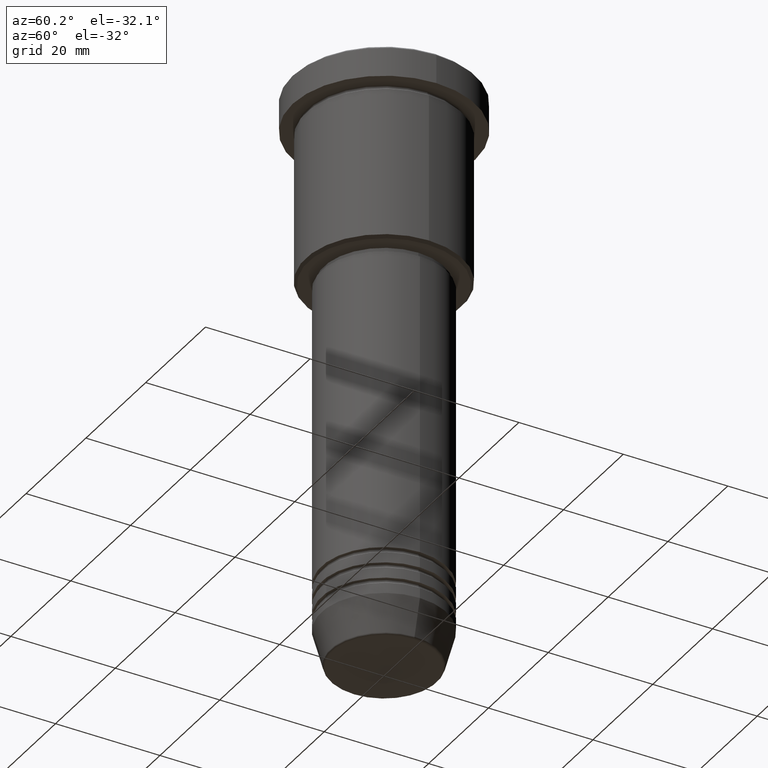
[diagram: clean part render]
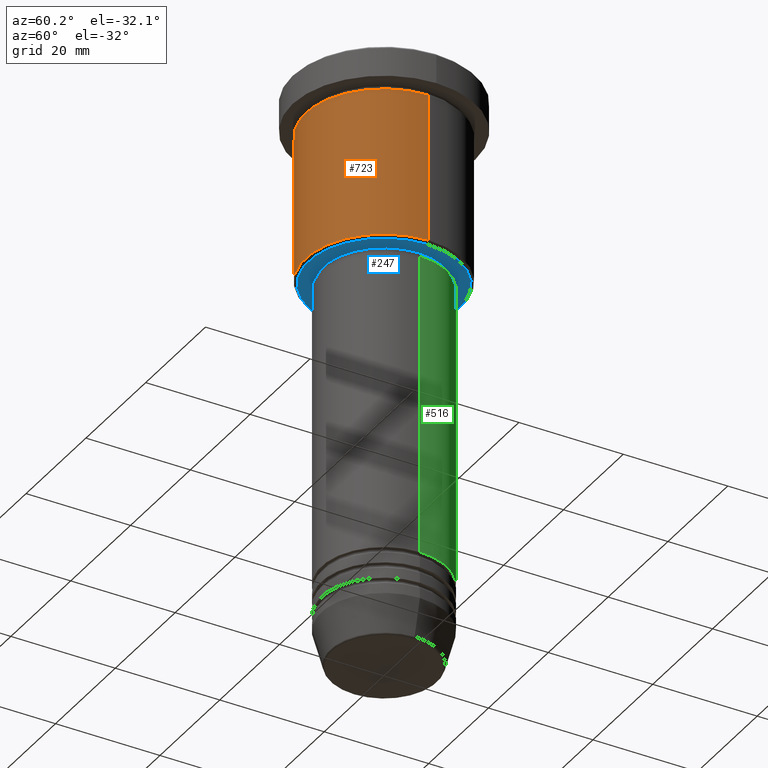
[diagram: same view with three faces highlighted in distinct colors, each labeled with its STEP entity id]
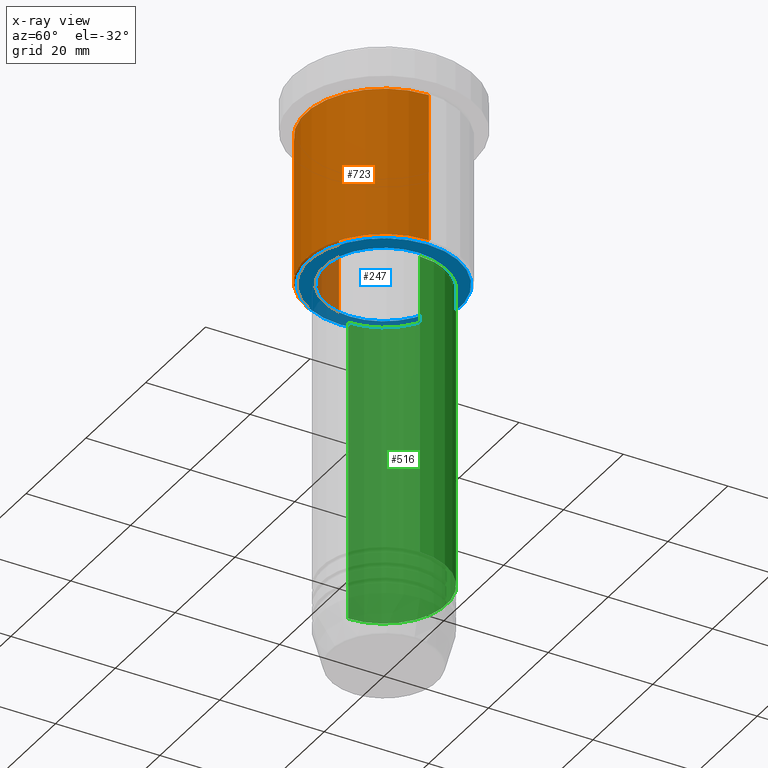
[diagram: x-ray of the same camera — body ghosted, the three highlighted faces saturated]
A machine part, auxiliary view with three faces highlighted in distinct colors.
The next image is the same camera in x-ray (body ghosted, the three faces saturated) — at least one of them is partly hidden behind the body in this view.
Their STEP definitions:

[orange] entity #723 — the highlighted cylindrical surface (partial cylindrical patch) has radius 15 mm, axis along (-0, -0, 1).
#103 = DIRECTION ( 'NONE',  ( -0.000000000000000000, -0.000000000000000000, 1.000000000000000000 ) ) ;
#111 = CARTESIAN_POINT ( 'NONE',  ( 15.00000000000000000, 0.000000000000000000, 0.000000000000000000 ) ) ;
#118 = VECTOR ( 'NONE', #581, 1000.000000000000000 ) ;
#134 = VERTEX_POINT ( 'NONE', #1126 ) ;
#211 = CARTESIAN_POINT ( 'NONE',  ( 0.000000000000000000, 0.000000000000000000, -6.999999999999995559 ) ) ;
#217 = DIRECTION ( 'NONE',  ( 1.000000000000000000, 0.000000000000000000, 0.000000000000000000 ) ) ;
#288 = DIRECTION ( 'NONE',  ( -0.000000000000000000, -0.000000000000000000, 1.000000000000000000 ) ) ;
#317 = ORIENTED_EDGE ( 'NONE', *, *, #347, .T. ) ;
#347 = EDGE_CURVE ( 'NONE', #597, #134, #754, .T. ) ;
#372 = CIRCLE ( 'NONE', #473, 15.00000000000000000 ) ;
#424 = EDGE_CURVE ( 'NONE', #798, #898, #734, .T. ) ;
#463 = CARTESIAN_POINT ( 'NONE',  ( 0.000000000000000000, 0.000000000000000000, -35.50000000000000711 ) ) ;
#473 = AXIS2_PLACEMENT_3D ( 'NONE', #211, #828, #217 ) ;
#476 = CARTESIAN_POINT ( 'NONE',  ( -15.00000000000000000, 1.836970198721029589E-15, -35.50000000000000711 ) ) ;
#518 = ORIENTED_EDGE ( 'NONE', *, *, #815, .T. ) ;
#552 = ORIENTED_EDGE ( 'NONE', *, *, #424, .F. ) ;
#570 = EDGE_LOOP ( 'NONE', ( #552, #518, #317, #725 ) ) ;
#581 = DIRECTION ( 'NONE',  ( -0.000000000000000000, -0.000000000000000000, 1.000000000000000000 ) ) ;
#597 = VERTEX_POINT ( 'NONE', #884 ) ;
#643 = CYLINDRICAL_SURFACE ( 'NONE', #1130, 15.00000000000000000 ) ;
#664 = DIRECTION ( 'NONE',  ( -1.000000000000000000, 0.000000000000000000, 0.000000000000000000 ) ) ;
#723 = ADVANCED_FACE ( 'NONE', ( #920 ), #643, .T. ) ;
#725 = ORIENTED_EDGE ( 'NONE', *, *, #753, .F. ) ;
#734 = LINE ( 'NONE', #1105, #925 ) ;
#753 = EDGE_CURVE ( 'NONE', #898, #134, #372, .T. ) ;
#754 = LINE ( 'NONE', #111, #118 ) ;
#798 = VERTEX_POINT ( 'NONE', #476 ) ;
#815 = EDGE_CURVE ( 'NONE', #798, #597, #866, .T. ) ;
#828 = DIRECTION ( 'NONE',  ( -0.000000000000000000, -0.000000000000000000, 1.000000000000000000 ) ) ;
#866 = CIRCLE ( 'NONE', #1058, 15.00000000000000000 ) ;
#884 = CARTESIAN_POINT ( 'NONE',  ( 15.00000000000000000, 0.000000000000000000, -35.50000000000000711 ) ) ;
#898 = VERTEX_POINT ( 'NONE', #1035 ) ;
#920 = FACE_OUTER_BOUND ( 'NONE', #570, .T. ) ;
#925 = VECTOR ( 'NONE', #1101, 1000.000000000000000 ) ;
#930 = DIRECTION ( 'NONE',  ( 1.000000000000000000, 0.000000000000000000, 0.000000000000000000 ) ) ;
#1004 = CARTESIAN_POINT ( 'NONE',  ( 0.000000000000000000, 0.000000000000000000, 0.000000000000000000 ) ) ;
#1035 = CARTESIAN_POINT ( 'NONE',  ( -15.00000000000000000, 1.836970198721029589E-15, -6.999999999999995559 ) ) ;
#1058 = AXIS2_PLACEMENT_3D ( 'NONE', #463, #288, #664 ) ;
#1101 = DIRECTION ( 'NONE',  ( -0.000000000000000000, -0.000000000000000000, 1.000000000000000000 ) ) ;
#1105 = CARTESIAN_POINT ( 'NONE',  ( -15.00000000000000000, 1.836970198721029589E-15, 0.000000000000000000 ) ) ;
#1126 = CARTESIAN_POINT ( 'NONE',  ( 15.00000000000000000, 0.000000000000000000, -6.999999999999995559 ) ) ;
#1130 = AXIS2_PLACEMENT_3D ( 'NONE', #1004, #103, #930 ) ;

[blue] entity #247 — the highlighted planar face has unit normal (0, 0, -1).
#5 = CARTESIAN_POINT ( 'NONE',  ( -14.49999999999998401, 1.806354028742345013E-15, -36.00000000000000711 ) ) ;
#9 = DIRECTION ( 'NONE',  ( -1.000000000000000000, 0.000000000000000000, 0.000000000000000000 ) ) ;
#50 = DIRECTION ( 'NONE',  ( 0.000000000000000000, 0.000000000000000000, -1.000000000000000000 ) ) ;
#66 = EDGE_LOOP ( 'NONE', ( #778, #797 ) ) ;
#76 = VERTEX_POINT ( 'NONE', #5 ) ;
#77 = AXIS2_PLACEMENT_3D ( 'NONE', #437, #50, #690 ) ;
#79 = CIRCLE ( 'NONE', #387, 11.50000000000000000 ) ;
#84 = DIRECTION ( 'NONE',  ( -1.000000000000000000, 0.000000000000000000, 0.000000000000000000 ) ) ;
#100 = AXIS2_PLACEMENT_3D ( 'NONE', #1091, #1010, #9 ) ;
#143 = CIRCLE ( 'NONE', #732, 14.49999999999998401 ) ;
#176 = EDGE_LOOP ( 'NONE', ( #987, #878 ) ) ;
#190 = DIRECTION ( 'NONE',  ( 1.000000000000000000, 0.000000000000000000, 0.000000000000000000 ) ) ;
#196 = CARTESIAN_POINT ( 'NONE',  ( 0.000000000000000000, 0.000000000000000000, -36.00000000000000711 ) ) ;
#247 = ADVANCED_FACE ( 'NONE', ( #422, #525 ), #609, .T. ) ;
#269 = DIRECTION ( 'NONE',  ( 0.000000000000000000, 0.000000000000000000, -1.000000000000000000 ) ) ;
#272 = DIRECTION ( 'NONE',  ( 1.000000000000000000, 0.000000000000000000, 0.000000000000000000 ) ) ;
#305 = CARTESIAN_POINT ( 'NONE',  ( 11.50000000000000000, 0.000000000000000000, -36.00000000000000711 ) ) ;
#307 = CARTESIAN_POINT ( 'NONE',  ( -11.50000000000000000, 1.408343819019456176E-15, -36.00000000000000711 ) ) ;
#315 = EDGE_CURVE ( 'NONE', #1158, #852, #79, .T. ) ;
#387 = AXIS2_PLACEMENT_3D ( 'NONE', #549, #1177, #190 ) ;
#404 = EDGE_CURVE ( 'NONE', #852, #1158, #1145, .T. ) ;
#416 = VERTEX_POINT ( 'NONE', #1180 ) ;
#422 = FACE_OUTER_BOUND ( 'NONE', #66, .T. ) ;
#437 = CARTESIAN_POINT ( 'NONE',  ( 0.000000000000000000, 15.00000000000000000, -36.00000000000000711 ) ) ;
#525 = FACE_BOUND ( 'NONE', #176, .T. ) ;
#549 = CARTESIAN_POINT ( 'NONE',  ( 0.000000000000000000, 0.000000000000000000, -36.00000000000000711 ) ) ;
#585 = AXIS2_PLACEMENT_3D ( 'NONE', #1092, #1006, #272 ) ;
#609 = PLANE ( 'NONE',  #77 ) ;
#690 = DIRECTION ( 'NONE',  ( -1.000000000000000000, 0.000000000000000000, -0.000000000000000000 ) ) ;
#691 = EDGE_CURVE ( 'NONE', #416, #76, #143, .T. ) ;
#698 = EDGE_CURVE ( 'NONE', #76, #416, #845, .T. ) ;
#732 = AXIS2_PLACEMENT_3D ( 'NONE', #196, #269, #84 ) ;
#778 = ORIENTED_EDGE ( 'NONE', *, *, #691, .T. ) ;
#797 = ORIENTED_EDGE ( 'NONE', *, *, #698, .T. ) ;
#845 = CIRCLE ( 'NONE', #100, 14.49999999999998401 ) ;
#852 = VERTEX_POINT ( 'NONE', #307 ) ;
#878 = ORIENTED_EDGE ( 'NONE', *, *, #404, .T. ) ;
#987 = ORIENTED_EDGE ( 'NONE', *, *, #315, .T. ) ;
#1006 = DIRECTION ( 'NONE',  ( -0.000000000000000000, -0.000000000000000000, 1.000000000000000000 ) ) ;
#1010 = DIRECTION ( 'NONE',  ( 0.000000000000000000, 0.000000000000000000, -1.000000000000000000 ) ) ;
#1091 = CARTESIAN_POINT ( 'NONE',  ( 0.000000000000000000, 0.000000000000000000, -36.00000000000000711 ) ) ;
#1092 = CARTESIAN_POINT ( 'NONE',  ( 0.000000000000000000, 0.000000000000000000, -36.00000000000000711 ) ) ;
#1145 = CIRCLE ( 'NONE', #585, 11.50000000000000000 ) ;
#1158 = VERTEX_POINT ( 'NONE', #305 ) ;
#1177 = DIRECTION ( 'NONE',  ( -0.000000000000000000, -0.000000000000000000, 1.000000000000000000 ) ) ;
#1180 = CARTESIAN_POINT ( 'NONE',  ( 14.49999999999998401, 0.000000000000000000, -36.00000000000000711 ) ) ;

[green] entity #516 — the highlighted cylindrical surface (partial cylindrical patch) has radius 12 mm, axis along (-0, -0, 1).
#39 = AXIS2_PLACEMENT_3D ( 'NONE', #154, #150, #418 ) ;
#52 = ORIENTED_EDGE ( 'NONE', *, *, #645, .T. ) ;
#69 = DIRECTION ( 'NONE',  ( -0.000000000000000000, -0.000000000000000000, 1.000000000000000000 ) ) ;
#78 = EDGE_CURVE ( 'NONE', #230, #255, #376, .T. ) ;
#87 = CARTESIAN_POINT ( 'NONE',  ( 0.000000000000000000, 0.000000000000000000, 0.000000000000000000 ) ) ;
#117 = ORIENTED_EDGE ( 'NONE', *, *, #821, .F. ) ;
#122 = VERTEX_POINT ( 'NONE', #233 ) ;
#150 = DIRECTION ( 'NONE',  ( -0.000000000000000000, -0.000000000000000000, 1.000000000000000000 ) ) ;
#154 = CARTESIAN_POINT ( 'NONE',  ( 0.000000000000000000, 0.000000000000000000, -94.99999999999997158 ) ) ;
#193 = EDGE_CURVE ( 'NONE', #230, #703, #406, .T. ) ;
#214 = CARTESIAN_POINT ( 'NONE',  ( 12.00000000000000000, 0.000000000000000000, 0.000000000000000000 ) ) ;
#230 = VERTEX_POINT ( 'NONE', #600 ) ;
#233 = CARTESIAN_POINT ( 'NONE',  ( -12.00000000000000000, 1.469576158976823947E-15, -37.00000000000001421 ) ) ;
#255 = VERTEX_POINT ( 'NONE', #795 ) ;
#280 = CYLINDRICAL_SURFACE ( 'NONE', #748, 12.00000000000000000 ) ;
#298 = DIRECTION ( 'NONE',  ( -0.000000000000000000, -0.000000000000000000, 1.000000000000000000 ) ) ;
#360 = LINE ( 'NONE', #1144, #553 ) ;
#370 = DIRECTION ( 'NONE',  ( 1.000000000000000000, 0.000000000000000000, 0.000000000000000000 ) ) ;
#376 = LINE ( 'NONE', #214, #470 ) ;
#406 = CIRCLE ( 'NONE', #39, 12.00000000000000000 ) ;
#418 = DIRECTION ( 'NONE',  ( 1.000000000000000000, 0.000000000000000000, 0.000000000000000000 ) ) ;
#455 = DIRECTION ( 'NONE',  ( 1.000000000000000000, 0.000000000000000000, 0.000000000000000000 ) ) ;
#470 = VECTOR ( 'NONE', #736, 1000.000000000000000 ) ;
#516 = ADVANCED_FACE ( 'NONE', ( #756 ), #280, .T. ) ;
#553 = VECTOR ( 'NONE', #69, 1000.000000000000000 ) ;
#600 = CARTESIAN_POINT ( 'NONE',  ( 12.00000000000000000, 0.000000000000000000, -94.99999999999997158 ) ) ;
#604 = CIRCLE ( 'NONE', #617, 12.00000000000000000 ) ;
#617 = AXIS2_PLACEMENT_3D ( 'NONE', #822, #724, #370 ) ;
#645 = EDGE_CURVE ( 'NONE', #703, #122, #360, .T. ) ;
#703 = VERTEX_POINT ( 'NONE', #910 ) ;
#719 = ORIENTED_EDGE ( 'NONE', *, *, #78, .F. ) ;
#724 = DIRECTION ( 'NONE',  ( -0.000000000000000000, -0.000000000000000000, 1.000000000000000000 ) ) ;
#736 = DIRECTION ( 'NONE',  ( -0.000000000000000000, -0.000000000000000000, 1.000000000000000000 ) ) ;
#748 = AXIS2_PLACEMENT_3D ( 'NONE', #87, #298, #455 ) ;
#756 = FACE_OUTER_BOUND ( 'NONE', #1162, .T. ) ;
#795 = CARTESIAN_POINT ( 'NONE',  ( 12.00000000000000000, 0.000000000000000000, -37.00000000000001421 ) ) ;
#821 = EDGE_CURVE ( 'NONE', #255, #122, #604, .T. ) ;
#822 = CARTESIAN_POINT ( 'NONE',  ( 0.000000000000000000, 0.000000000000000000, -37.00000000000001421 ) ) ;
#890 = ORIENTED_EDGE ( 'NONE', *, *, #193, .T. ) ;
#910 = CARTESIAN_POINT ( 'NONE',  ( -12.00000000000000000, 1.469576158976823947E-15, -94.99999999999997158 ) ) ;
#1144 = CARTESIAN_POINT ( 'NONE',  ( -12.00000000000000000, 1.469576158976823947E-15, 0.000000000000000000 ) ) ;
#1162 = EDGE_LOOP ( 'NONE', ( #890, #52, #117, #719 ) ) ;